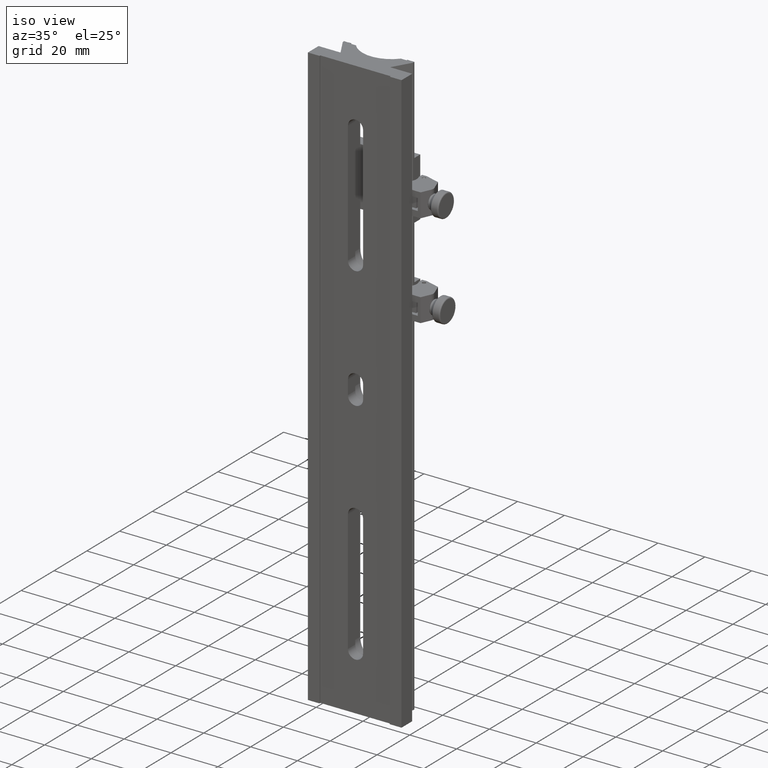
[diagram: clean part render]
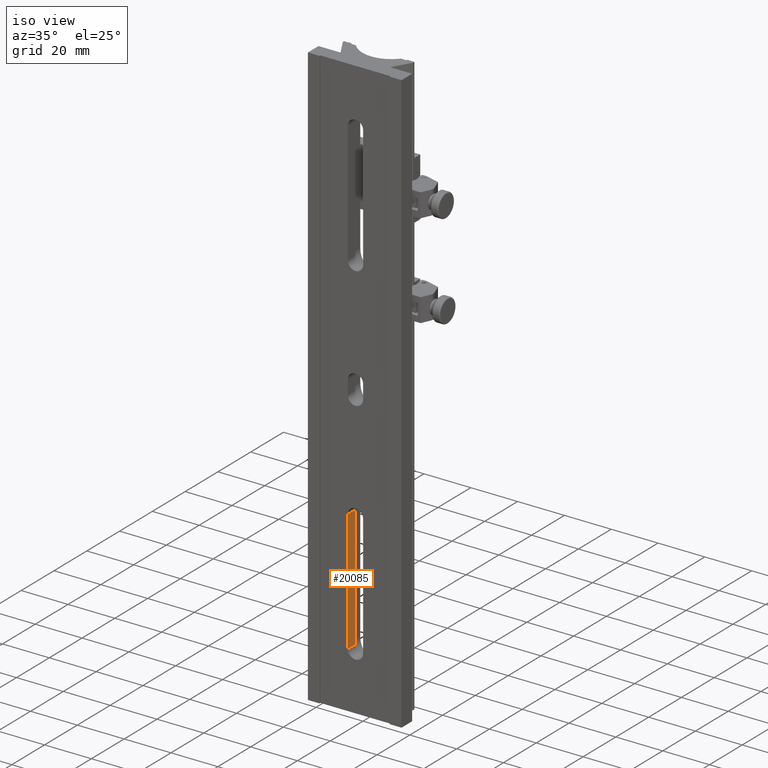
[diagram: same view with one face highlighted and labeled with its STEP entity id]
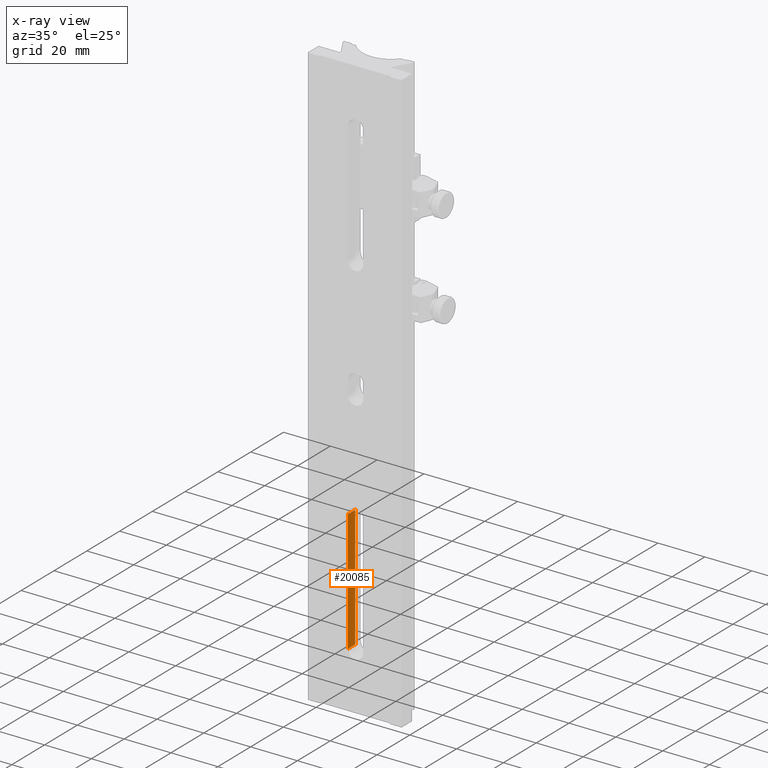
[diagram: x-ray of the same camera — body ghosted, the highlighted face saturated]
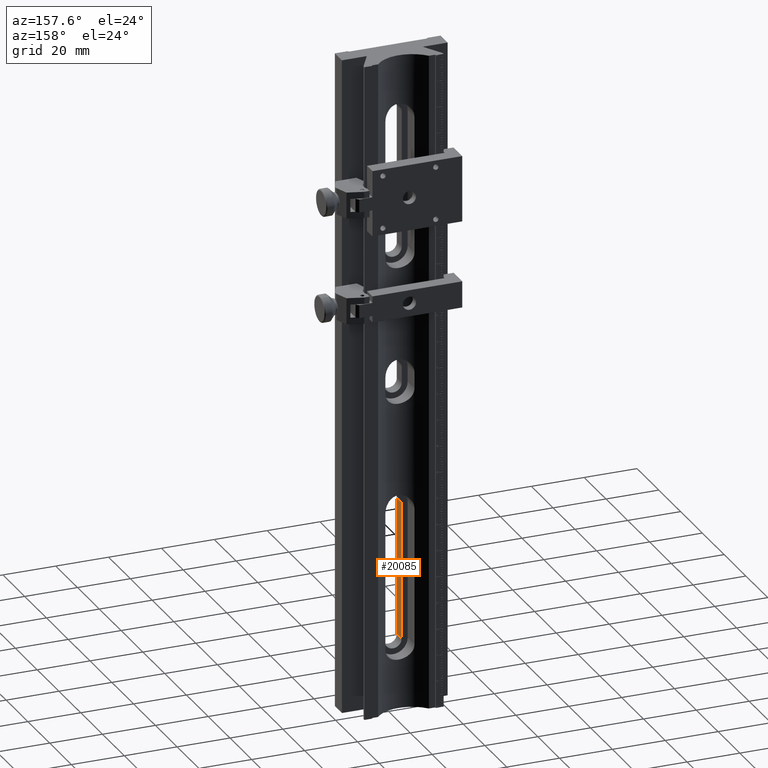
[diagram: same view with one face highlighted and labeled with its STEP entity id]
A machine part, iso view. The second image highlights one B-rep face of the part: STEP entity #20085.
The next image is the same camera in x-ray: the body ghosted, the highlighted face saturated — about 0% of this face is hidden behind the body in this view.
A second angle (auxiliary view) of the same face is appended — the face is thin or edge-on in the first view.
In plain terms, the highlighted planar face has unit normal (-1, 0, 0).
Its self-contained STEP definition (entity closure, byte-faithful):
#1610 = B_SPLINE_CURVE_WITH_KNOTS ( 'NONE', 3,
 ( #26030, #47059, #46189, #53358 ),
 .UNSPECIFIED., .F., .F.,
 ( 4, 4 ),
 ( 0.000000000000000000, 1.000000000000000000 ),
 .UNSPECIFIED. ) ;
#3539 = CARTESIAN_POINT ( 'NONE',  ( -24.35659485934299795, 1.543211375065000057, -101.0000000000000000 ) ) ;
#5012 = EDGE_CURVE ( 'NONE', #8955, #47599, #36470, .T. ) ;
#5920 = PLANE ( 'NONE',  #44756 ) ;
#8955 = VERTEX_POINT ( 'NONE', #75803 ) ;
#12659 = DIRECTION ( 'NONE',  ( 0.000000000000000000, 1.000000000000000000, 0.000000000000000000 ) ) ;
#16007 = CARTESIAN_POINT ( 'NONE',  ( -24.35659485934299795, -2.956788624935000165, -49.00000000000000000 ) ) ;
#20085 = ADVANCED_FACE ( 'NONE', ( #46702 ), #5920, .F. ) ;
#23726 = CARTESIAN_POINT ( 'NONE',  ( -24.35659485934299795, 0.04321137506499991843, -101.0000000000000000 ) ) ;
#24424 = CARTESIAN_POINT ( 'NONE',  ( -24.35659485934299795, 1.543211375065000057, -66.33333333333330017 ) ) ;
#26030 = CARTESIAN_POINT ( 'NONE',  ( -24.35659485934299795, -2.956788624935000165, -101.0000000000000000 ) ) ;
#29511 = EDGE_CURVE ( 'NONE', #68748, #8955, #37208, .T. ) ;
#31169 = ORIENTED_EDGE ( 'NONE', *, *, #5012, .F. ) ;
#35297 = CARTESIAN_POINT ( 'NONE',  ( -24.35659485934299795, -2.956788624935000165, -101.0000000000000000 ) ) ;
#36380 = ORIENTED_EDGE ( 'NONE', *, *, #56543, .F. ) ;
#36470 = B_SPLINE_CURVE_WITH_KNOTS ( 'NONE', 3,
 ( #3539, #23726, #78336, #66690 ),
 .UNSPECIFIED., .F., .F.,
 ( 4, 4 ),
 ( 0.000000000000000000, 1.000000000000000000 ),
 .UNSPECIFIED. ) ;
#37102 = ORIENTED_EDGE ( 'NONE', *, *, #60205, .F. ) ;
#37208 = B_SPLINE_CURVE_WITH_KNOTS ( 'NONE', 3,
 ( #71013, #24424, #50859, #51743 ),
 .UNSPECIFIED., .F., .F.,
 ( 4, 4 ),
 ( 0.000000000000000000, 1.000000000000000000 ),
 .UNSPECIFIED. ) ;
#37744 = CARTESIAN_POINT ( 'NONE',  ( -24.35659485934299795, -1.456788624934999721, -49.00000000000000000 ) ) ;
#44756 = AXIS2_PLACEMENT_3D ( 'NONE', #81168, #47130, #12659 ) ;
#45356 = CARTESIAN_POINT ( 'NONE',  ( -24.35659485934299795, 0.04321137506499991843, -49.00000000000000000 ) ) ;
#45856 = EDGE_LOOP ( 'NONE', ( #31169, #53091, #37102, #36380 ) ) ;
#46189 = CARTESIAN_POINT ( 'NONE',  ( -24.35659485934299795, -2.956788624935000165, -66.33333333333330017 ) ) ;
#46702 = FACE_OUTER_BOUND ( 'NONE', #45856, .T. ) ;
#47059 = CARTESIAN_POINT ( 'NONE',  ( -24.35659485934299795, -2.956788624935000165, -83.66666666666669983 ) ) ;
#47130 = DIRECTION ( 'NONE',  ( -1.000000000000000000, 0.000000000000000000, 1.836970198721029688E-16 ) ) ;
#47599 = VERTEX_POINT ( 'NONE', #35297 ) ;
#50859 = CARTESIAN_POINT ( 'NONE',  ( -24.35659485934299795, 1.543211375065000057, -83.66666666666669983 ) ) ;
#51621 = CARTESIAN_POINT ( 'NONE',  ( -24.35659485934299795, -2.956788624935000165, -49.00000000000000000 ) ) ;
#51743 = CARTESIAN_POINT ( 'NONE',  ( -24.35659485934299795, 1.543211375065000057, -101.0000000000000000 ) ) ;
#51841 = CARTESIAN_POINT ( 'NONE',  ( -24.35659485934299795, 1.543211375065000057, -49.00000000000000000 ) ) ;
#53091 = ORIENTED_EDGE ( 'NONE', *, *, #29511, .F. ) ;
#53358 = CARTESIAN_POINT ( 'NONE',  ( -24.35659485934299795, -2.956788624935000165, -49.00000000000000000 ) ) ;
#56543 = EDGE_CURVE ( 'NONE', #47599, #57604, #1610, .T. ) ;
#57604 = VERTEX_POINT ( 'NONE', #16007 ) ;
#60205 = EDGE_CURVE ( 'NONE', #57604, #68748, #63160, .T. ) ;
#63160 = B_SPLINE_CURVE_WITH_KNOTS ( 'NONE', 3,
 ( #51621, #37744, #45356, #80268 ),
 .UNSPECIFIED., .F., .F.,
 ( 4, 4 ),
 ( 0.000000000000000000, 1.000000000000000000 ),
 .UNSPECIFIED. ) ;
#66690 = CARTESIAN_POINT ( 'NONE',  ( -24.35659485934299795, -2.956788624935000165, -101.0000000000000000 ) ) ;
#68748 = VERTEX_POINT ( 'NONE', #51841 ) ;
#71013 = CARTESIAN_POINT ( 'NONE',  ( -24.35659485934299795, 1.543211375065000057, -49.00000000000000000 ) ) ;
#75803 = CARTESIAN_POINT ( 'NONE',  ( -24.35659485934299795, 1.543211375065000057, -101.0000000000000000 ) ) ;
#78336 = CARTESIAN_POINT ( 'NONE',  ( -24.35659485934299795, -1.456788624934999721, -101.0000000000000000 ) ) ;
#80268 = CARTESIAN_POINT ( 'NONE',  ( -24.35659485934299795, 1.543211375065000057, -49.00000000000000000 ) ) ;
#81168 = CARTESIAN_POINT ( 'NONE',  ( -24.35659485934299795, 11.54321137506500072, -101.0000000000000000 ) ) ;